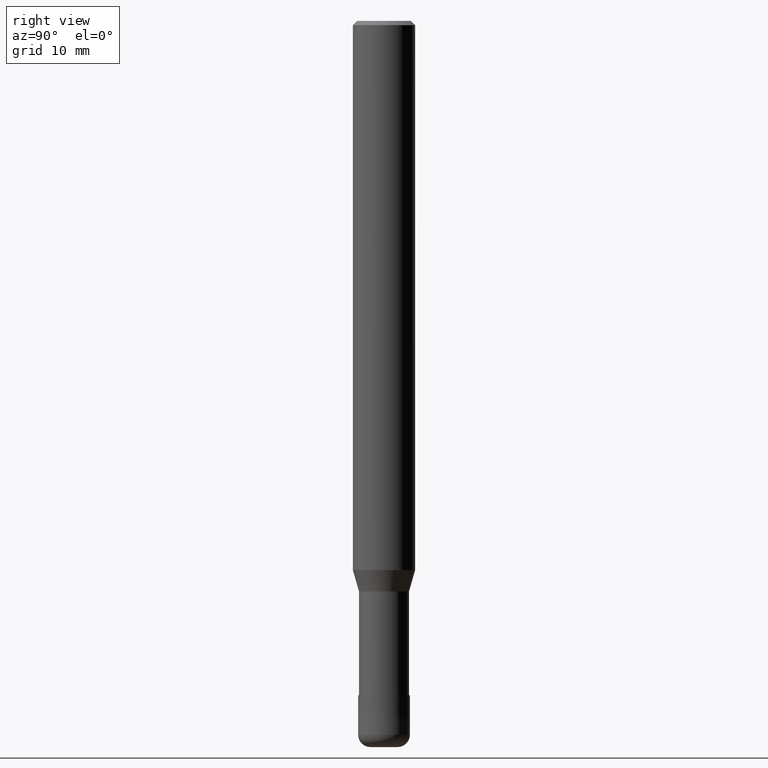
[diagram: clean part render]
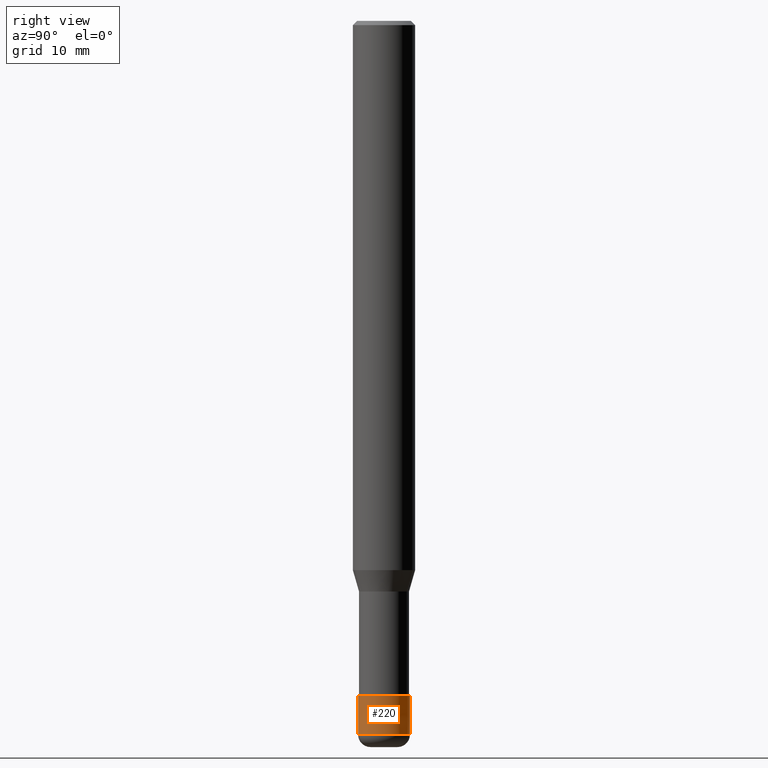
[diagram: same view with one face highlighted and labeled with its STEP entity id]
A machine part, right view. The second image highlights one B-rep face of the part: STEP entity #220.
In plain terms, the highlighted conical surface has half-angle 0.002 deg.
Its self-contained STEP definition (entity closure, byte-faithful):
#146=VERTEX_POINT('',#308);
#148=VERTEX_POINT('',#310);
#152=VERTEX_POINT('',#314);
#158=EDGE_CURVE('',#146,#148,#321,.T.);
#162=VERTEX_POINT('',#325);
#188=EDGE_CURVE('',#152,#146,#353,.T.);
#194=EDGE_CURVE('',#162,#152,#361,.T.);
#206=EDGE_CURVE('',#162,#148,#373,.T.);
#220=ADVANCED_FACE('',(#388),#389,.T.);
#308=CARTESIAN_POINT('',(3.06151588455594E-016,-2.5,-68.8));
#310=CARTESIAN_POINT('',(3.06139342392056E-016,-2.4999,-65.0));
#314=CARTESIAN_POINT('',(0.0,2.5,-68.8));
#321=LINE('',#498,#499);
#325=CARTESIAN_POINT('',(0.0,2.4999,-65.0));
#353=CIRCLE('',#543,2.5);
#361=LINE('',#552,#553);
#373=CIRCLE('',#568,2.4999);
#388=FACE_OUTER_BOUND('',#588,.T.);
#389=CONICAL_SURFACE('',#589,2.49995,2.6315789467665E-005);
#498=CARTESIAN_POINT('',(3.06145465423825E-016,-2.49995,-66.9));
#499=VECTOR('',#691,1.0);
#543=AXIS2_PLACEMENT_3D('',#733,#734,#735);
#552=CARTESIAN_POINT('',(-3.06145465423825E-016,2.49995,-66.9));
#553=VECTOR('',#752,1.0);
#568=AXIS2_PLACEMENT_3D('',#759,#760,#761);
#588=EDGE_LOOP('',(#781,#782,#783,#784));
#589=AXIS2_PLACEMENT_3D('',#785,#786,#787);
#691=DIRECTION('',(-3.2226482984235E-021,2.63157894646276E-005,0.99999999965374));
#733=CARTESIAN_POINT('',(0.0,0.0,-68.8));
#734=DIRECTION('',(0.0,0.0,-1.0));
#735=DIRECTION('',(0.0,1.0,0.0));
#752=DIRECTION('',(-3.2226482984235E-021,2.63157894646276E-005,-0.99999999965374));
#759=CARTESIAN_POINT('',(0.0,0.0,-65.0));
#760=DIRECTION('',(0.0,0.0,-1.0));
#761=DIRECTION('',(0.0,1.0,0.0));
#781=ORIENTED_EDGE('',*,*,#194,.F.);
#782=ORIENTED_EDGE('',*,*,#206,.T.);
#783=ORIENTED_EDGE('',*,*,#158,.F.);
#784=ORIENTED_EDGE('',*,*,#188,.F.);
#785=CARTESIAN_POINT('',(0.0,0.0,-66.9));
#786=DIRECTION('',(0.0,-0.0,-1.0));
#787=DIRECTION('',(0.0,1.0,0.0));